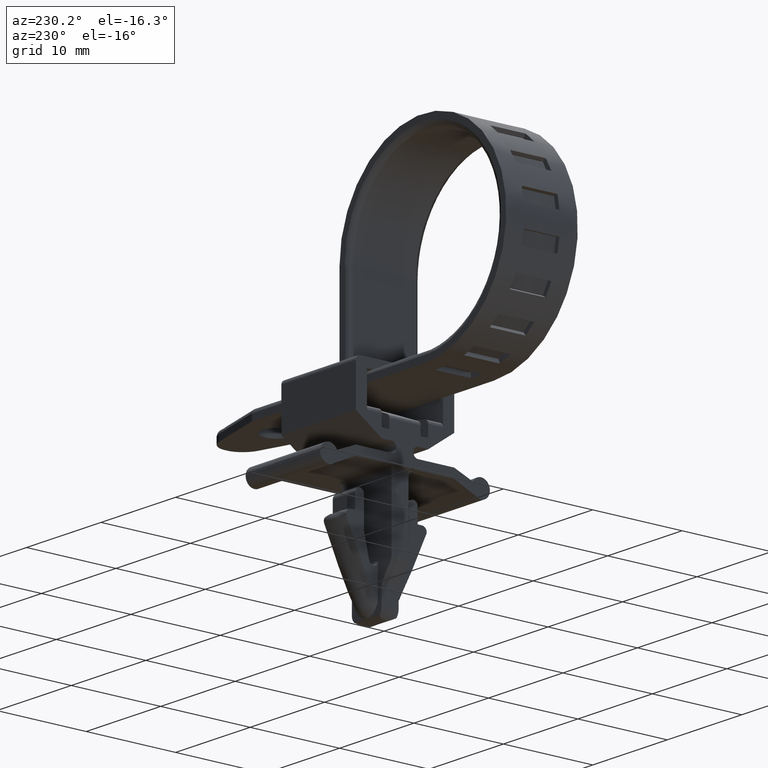
[diagram: clean part render]
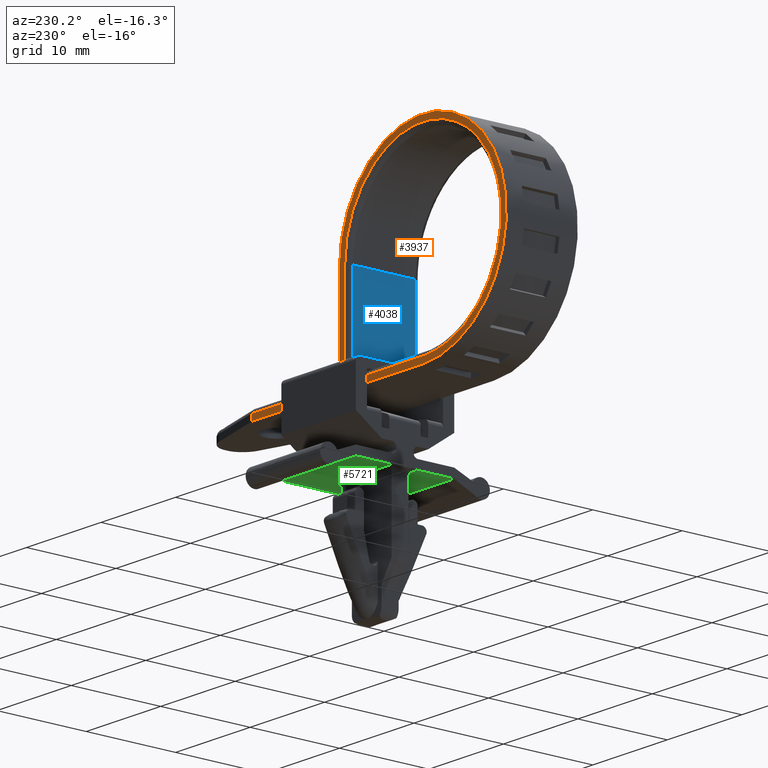
[diagram: same view with three faces highlighted in distinct colors, each labeled with its STEP entity id]
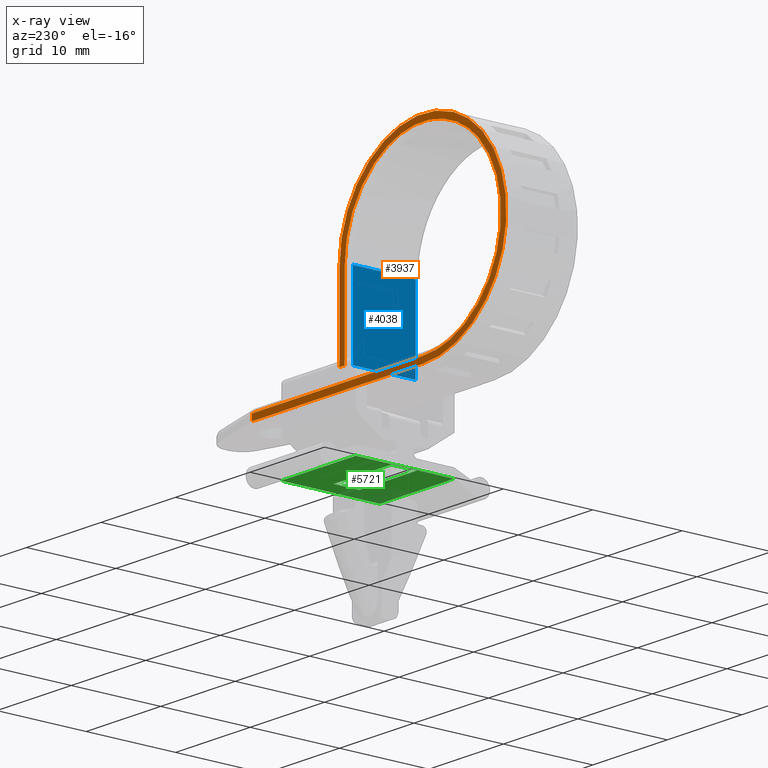
[diagram: x-ray of the same camera — body ghosted, the three highlighted faces saturated]
A machine part, auxiliary view with three faces highlighted in distinct colors.
The next image is the same camera in x-ray (body ghosted, the three faces saturated) — at least one of them is partly hidden behind the body in this view.
Their STEP definitions:

[orange] entity #3937 — the highlighted face is a freeform B-spline surface patch.
#819=CARTESIAN_POINT('',(0.0,4.0,-10.500000000000000));
#820=VERTEX_POINT('',#819);
#832=CARTESIAN_POINT('',(-7.424621842482065,4.0,7.424620562435379));
#833=VERTEX_POINT('',#832);
#834=CARTESIAN_POINT('',(-7.424621842482065,4.0,7.424620562435379));
#835=CARTESIAN_POINT('',(-7.948609622766560,3.999999999999991,6.900791653483070));
#836=CARTESIAN_POINT('',(-8.630462658645993,4.000000000000023,6.056568761035014));
#837=CARTESIAN_POINT('',(-9.374492388931696,3.999999999999961,4.773067327869858));
#838=CARTESIAN_POINT('',(-9.920004699465714,4.000000000000073,3.550134395748471));
#839=CARTESIAN_POINT('',(-10.335405938269449,3.999999999999866,2.088477906174860));
#840=CARTESIAN_POINT('',(-10.510457379508660,4.000000000000068,0.612967731298128));
#841=CARTESIAN_POINT('',(-10.500094750404330,3.999999999999976,-0.612824823575665));
#842=CARTESIAN_POINT('',(-10.380069926680290,4.000000000000028,-1.702777435509303));
#843=CARTESIAN_POINT('',(-10.137704106804600,3.999999999999986,-2.822170342073591));
#844=CARTESIAN_POINT('',(-9.679951790874272,3.999999999999999,-4.166295212594246));
#845=CARTESIAN_POINT('',(-8.969357573438369,3.999999999999997,-5.546246525241774));
#846=CARTESIAN_POINT('',(-8.134044559379023,4.000000000000028,-6.676076676280645));
#847=CARTESIAN_POINT('',(-7.299571944389052,3.999999999999946,-7.572974436488156));
#848=CARTESIAN_POINT('',(-6.317035016779497,4.000000000000187,-8.435149464702905));
#849=CARTESIAN_POINT('',(-5.135239827102516,3.999999999999947,-9.197544675921598));
#850=CARTESIAN_POINT('',(-3.789439392158237,3.999999999999941,-9.822707795055266));
#851=CARTESIAN_POINT('',(-2.666052479115838,4.000000000000227,-10.180491723037800));
#852=CARTESIAN_POINT('',(-1.352951799189506,3.999999999999500,-10.437488467248681));
#853=CARTESIAN_POINT('',(-0.531519396875636,4.000000000000572,-10.500028180965510));
#854=CARTESIAN_POINT('',(0.0,4.0,-10.500000000000000));
#855=B_SPLINE_CURVE_WITH_KNOTS('',3,(#834,#835,#836,#837,#838,#839,#840,#841,#842,#843,#844,#845,#846,#847,#848,#849,#850,#851,#852,#853,#854),.UNSPECIFIED.,.F.,.U.,(4,1,1,1,1,1,1,1,1,1,1,1,1,1,1,1,1,1,4),(0.000000046040089,2.222722733976134,3.237456044221027,4.445472087844408,6.233336864034687,7.779598587884102,8.890972869573121,9.905699200448527,11.065388480230119,12.321736820267420,14.157868814742351,15.704128639645271,16.525581304100388,17.830237589434820,19.618101407434089,20.729474231222369,22.275731283415020,23.145509020246120,24.740063072616788),.UNSPECIFIED.);
#856=EDGE_CURVE('',#833,#820,#855,.T.);
#858=CARTESIAN_POINT('',(10.500000000000000,4.0,0.0));
#859=VERTEX_POINT('',#858);
#860=CARTESIAN_POINT('',(10.500000000000000,4.0,0.0));
#861=CARTESIAN_POINT('',(10.500154694710440,4.000000000000006,0.773133845893031));
#862=CARTESIAN_POINT('',(10.353428160599080,3.999999999999973,2.093821559931107));
#863=CARTESIAN_POINT('',(9.853502854718235,4.000000000000017,3.714878004676395));
#864=CARTESIAN_POINT('',(9.207630500689072,4.000000000000036,5.122181737501232));
#865=CARTESIAN_POINT('',(8.357264122906642,3.999999999999897,6.440345790496608));
#866=CARTESIAN_POINT('',(7.165423332407453,4.000000000000104,7.737224780913016));
#867=CARTESIAN_POINT('',(6.022327786620296,3.999999999999996,8.636329848331309));
#868=CARTESIAN_POINT('',(4.805298380727545,3.999999999999898,9.365791353902905));
#869=CARTESIAN_POINT('',(3.609553559308496,4.000000000000213,9.896923118695280));
#870=CARTESIAN_POINT('',(2.026304269587476,3.999999999999877,10.348217045443880));
#871=CARTESIAN_POINT('',(0.580522700940758,4.000000000000078,10.520914571497100));
#872=CARTESIAN_POINT('',(-0.967118448245460,3.999999999999935,10.484070730696700));
#873=CARTESIAN_POINT('',(-2.292955898478573,4.000000000000033,10.283256373132540));
#874=CARTESIAN_POINT('',(-3.776399269984239,3.999999999999966,9.835731726582720));
#875=CARTESIAN_POINT('',(-5.021399730773955,4.000000000000046,9.256217051105312));
#876=CARTESIAN_POINT('',(-6.286845210074916,3.999999999999960,8.450766887513343));
#877=CARTESIAN_POINT('',(-7.014642556736312,3.999999999999941,7.834668392353567));
#878=CARTESIAN_POINT('',(-7.424621842482065,4.0,7.424620562435379));
#879=B_SPLINE_CURVE_WITH_KNOTS('',3,(#860,#861,#862,#863,#864,#865,#866,#867,#868,#869,#870,#871,#872,#873,#874,#875,#876,#877,#878),.UNSPECIFIED.,.F.,.U.,(4,1,1,1,1,1,1,1,1,1,1,1,1,1,1,1,4),(0.000000046217227,2.319363485040277,3.962268604493925,5.073642232825577,6.958147402292035,8.649360012940353,10.340590559306561,11.307003737978720,12.901544766767589,14.254509859921701,16.235662189412000,17.250394041144489,18.893292682918229,20.246272624625281,21.889175002650479,23.000533133391919,24.740064882880720),.UNSPECIFIED.);
#880=EDGE_CURVE('',#859,#833,#879,.T.);
#1089=CARTESIAN_POINT('',(22.936000000000000,4.000000000000116,-10.500000000000000));
#1090=VERTEX_POINT('',#1089);
#3248=CARTESIAN_POINT('',(22.936000000000000,4.0,-11.199999999999880));
#3249=VERTEX_POINT('',#3248);
#3250=CARTESIAN_POINT('',(22.936000000000000,4.0,-11.199999999999880));
#3251=CARTESIAN_POINT('',(22.936000000000000,4.000000000000116,-10.500000000000000));
#3252=QUASI_UNIFORM_CURVE('',1,(#3250,#3251),.UNSPECIFIED.,.F.,.U.);
#3253=EDGE_CURVE('',#3249,#1090,#3252,.T.);
#3326=CARTESIAN_POINT('',(0.0,4.0,-11.199999999999880));
#3327=VERTEX_POINT('',#3326);
#3393=CARTESIAN_POINT('',(11.199999999999999,4.0,0.0));
#3394=VERTEX_POINT('',#3393);
#3400=CARTESIAN_POINT('',(-7.919596812859408,4.0,7.919595085719162));
#3401=VERTEX_POINT('',#3400);
#3402=CARTESIAN_POINT('',(11.199999999999999,4.0,0.0));
#3403=CARTESIAN_POINT('',(11.200175895803810,4.000000000000018,0.859042047418585));
#3404=CARTESIAN_POINT('',(11.045047372255830,3.999999999999979,2.199037812897309));
#3405=CARTESIAN_POINT('',(10.555201670086600,4.000000000000014,3.813567968320649));
#3406=CARTESIAN_POINT('',(10.053768326058901,3.999999999999993,4.983339084010360));
#3407=CARTESIAN_POINT('',(9.397456642092852,3.999999999999981,6.154465742896124));
#3408=CARTESIAN_POINT('',(8.404178369890296,3.999999999999972,7.476786724370226));
#3409=CARTESIAN_POINT('',(7.173026637783350,4.000000000000089,8.659767678789853));
#3410=CARTESIAN_POINT('',(5.664245576367279,3.999999999999838,9.717184414319286));
#3411=CARTESIAN_POINT('',(4.174661917644510,4.000000000000335,10.441393959769130));
#3412=CARTESIAN_POINT('',(2.479956315308809,3.999999999999865,10.962551887236550));
#3413=CARTESIAN_POINT('',(1.065881566896983,4.000000000000005,11.181199684436610));
#3414=CARTESIAN_POINT('',(-0.309619605419999,4.000000000000159,11.214920611451680));
#3415=CARTESIAN_POINT('',(-1.682129677655672,4.000000000000275,11.109490855009261));
#3416=CARTESIAN_POINT('',(-3.063302379671519,3.999999999999887,10.808234093696880));
#3417=CARTESIAN_POINT('',(-4.356911033300959,4.000000000000026,10.338594868429929));
#3418=CARTESIAN_POINT('',(-5.395019782001944,3.999999999999969,9.837830314943551));
#3419=CARTESIAN_POINT('',(-6.624814498068787,4.000000000000075,9.078765345074061));
#3420=CARTESIAN_POINT('',(-7.445858388381723,3.999999999999946,8.393439719279101));
#3421=CARTESIAN_POINT('',(-7.919596812859408,4.0,7.919595085719162));
#3422=B_SPLINE_CURVE_WITH_KNOTS('',3,(#3402,#3403,#3404,#3405,#3406,#3407,#3408,#3409,#3410,#3411,#3412,#3413,#3414,#3415,#3416,#3417,#3418,#3419,#3420,#3421),.UNSPECIFIED.,.F.,.U.,(4,1,1,1,1,1,1,1,1,1,1,1,1,1,1,1,1,4),(0.000000045072692,2.577074683297386,4.020249368697559,5.051091476276280,6.391183420131387,8.040527442694451,9.999125014575824,11.493832706355979,13.555487781613021,14.947102279936651,16.802616319831600,17.833459759258051,19.070466155910690,20.925977165005119,22.059901897801911,23.193825004744841,24.379292313868380,26.389402797540889),.UNSPECIFIED.);
#3423=EDGE_CURVE('',#3394,#3401,#3422,.T.);
#3425=CARTESIAN_POINT('',(-7.919596812859408,4.0,7.919595085719162));
#3426=CARTESIAN_POINT('',(-8.429894631930621,3.999999999999996,7.409410623109487));
#3427=CARTESIAN_POINT('',(-9.197728625033381,3.999999999999997,6.476508900116661));
#3428=CARTESIAN_POINT('',(-10.081955993510880,3.999999999999986,4.959307248819838));
#3429=CARTESIAN_POINT('',(-10.729833367307011,4.000000000000009,3.381654268134087));
#3430=CARTESIAN_POINT('',(-11.097465838735250,3.999999999999998,1.784686529170129));
#3431=CARTESIAN_POINT('',(-11.213375064642820,4.000000000000001,0.361220104950053));
#3432=CARTESIAN_POINT('',(-11.187680099241989,4.0,-0.928436381245425));
#3433=CARTESIAN_POINT('',(-11.022661715926070,4.0,-2.122790906710114));
#3434=CARTESIAN_POINT('',(-10.679169693383320,4.000000000000002,-3.454975342855270));
#3435=CARTESIAN_POINT('',(-10.168870567471300,3.999999999999984,-4.790162210557360));
#3436=CARTESIAN_POINT('',(-9.433868943555094,4.000000000000054,-6.096920629911129));
#3437=CARTESIAN_POINT('',(-8.556409883381763,3.999999999999889,-7.266829820827486));
#3438=CARTESIAN_POINT('',(-7.618578619244306,4.000000000000003,-8.251876339867179));
#3439=CARTESIAN_POINT('',(-6.347957398479095,3.999999999999904,-9.281713687555605));
#3440=CARTESIAN_POINT('',(-4.797325269988676,4.000000000000062,-10.183900822165270));
#3441=CARTESIAN_POINT('',(-3.049277986815377,3.999999999999970,-10.826003413393330));
#3442=CARTESIAN_POINT('',(-1.443164134324604,4.000000000000005,-11.140325967022440));
#3443=CARTESIAN_POINT('',(-0.446691802137074,4.000000000000001,-11.200006778364250));
#3444=CARTESIAN_POINT('',(0.0,4.0,-11.199999999999880));
#3445=B_SPLINE_CURVE_WITH_KNOTS('',3,(#3425,#3426,#3427,#3428,#3429,#3430,#3431,#3432,#3433,#3434,#3435,#3436,#3437,#3438,#3439,#3440,#3441,#3442,#3443,#3444),.UNSPECIFIED.,.F.,.U.,(4,1,1,1,1,1,1,1,1,1,1,1,1,1,1,1,1,4),(0.000000045085113,2.164752241795231,3.607919259278930,5.257257875009771,7.267397209765942,8.504405557479288,9.535245923550686,11.133036844014560,12.112340670931140,13.658559184156990,15.410978529605041,16.596452852008252,18.039622817631528,19.482798434321111,21.492937605600879,23.399983644464729,25.049322295635921,26.389400354989000),.UNSPECIFIED.);
#3446=EDGE_CURVE('',#3401,#3327,#3445,.T.);
#3581=CARTESIAN_POINT('',(0.0,4.0,-11.199999999999880));
#3582=CARTESIAN_POINT('',(22.936000000000000,4.0,-11.199999999999880));
#3583=QUASI_UNIFORM_CURVE('',1,(#3581,#3582),.UNSPECIFIED.,.F.,.U.);
#3584=EDGE_CURVE('',#3327,#3249,#3583,.T.);
#3679=CARTESIAN_POINT('',(11.199999999999999,4.0,-9.000010999999770));
#3680=VERTEX_POINT('',#3679);
#3686=CARTESIAN_POINT('',(11.199999999999999,4.0,-9.000010999999770));
#3687=CARTESIAN_POINT('',(11.199999999999999,4.0,0.0));
#3688=QUASI_UNIFORM_CURVE('',1,(#3686,#3687),.UNSPECIFIED.,.F.,.U.);
#3689=EDGE_CURVE('',#3680,#3394,#3688,.T.);
#3781=CARTESIAN_POINT('',(0.0,4.0,-10.500000000000000));
#3782=CARTESIAN_POINT('',(22.936000000000000,4.000000000000116,-10.500000000000000));
#3783=QUASI_UNIFORM_CURVE('',1,(#3781,#3782),.UNSPECIFIED.,.F.,.U.);
#3784=EDGE_CURVE('',#820,#1090,#3783,.T.);
#3890=CARTESIAN_POINT('',(10.500000000000000,4.0,-9.000010999999770));
#3891=VERTEX_POINT('',#3890);
#3908=CARTESIAN_POINT('',(10.500000000000000,4.0,-9.000010999999770));
#3909=CARTESIAN_POINT('',(10.500000000000000,4.0,0.0));
#3910=QUASI_UNIFORM_CURVE('',1,(#3908,#3909),.UNSPECIFIED.,.F.,.U.);
#3911=EDGE_CURVE('',#3891,#859,#3910,.T.);
#3916=CARTESIAN_POINT('',(-12.905095202256771,4.0,12.318887757056689));
#3917=CARTESIAN_POINT('',(24.641094147623349,4.0,12.318887757056689));
#3918=CARTESIAN_POINT('',(-12.905095202256771,4.0,-12.318880928280761));
#3919=CARTESIAN_POINT('',(24.641094147623349,4.0,-12.318880928280761));
#3920=B_SPLINE_SURFACE_WITH_KNOTS('',1,1,((#3916,#3918),(#3917,#3919)),.UNSPECIFIED.,.F.,.F.,.U.,(2,2),(2,2),(0.0,37.546189349880109),(0.0,24.637768685337448),.UNSPECIFIED.);
#3921=ORIENTED_EDGE('',*,*,#3689,.F.);
#3922=CARTESIAN_POINT('',(11.199999999999999,4.0,-9.000010999999770));
#3923=CARTESIAN_POINT('',(10.500000000000000,4.0,-9.000010999999770));
#3924=QUASI_UNIFORM_CURVE('',1,(#3922,#3923),.UNSPECIFIED.,.F.,.U.);
#3925=EDGE_CURVE('',#3680,#3891,#3924,.T.);
#3926=ORIENTED_EDGE('',*,*,#3925,.T.);
#3927=ORIENTED_EDGE('',*,*,#3911,.T.);
#3928=ORIENTED_EDGE('',*,*,#880,.T.);
#3929=ORIENTED_EDGE('',*,*,#856,.T.);
#3930=ORIENTED_EDGE('',*,*,#3784,.T.);
#3931=ORIENTED_EDGE('',*,*,#3253,.F.);
#3932=ORIENTED_EDGE('',*,*,#3584,.F.);
#3933=ORIENTED_EDGE('',*,*,#3446,.F.);
#3934=ORIENTED_EDGE('',*,*,#3423,.F.);
#3935=EDGE_LOOP('',(#3921,#3926,#3927,#3928,#3929,#3930,#3931,#3932,#3933,#3934));
#3936=FACE_OUTER_BOUND('',#3935,.T.);
#3937=ADVANCED_FACE('',(#3936),#3920,.T.);

[blue] entity #4038 — the highlighted face is a freeform B-spline surface patch.
#698=CARTESIAN_POINT('',(10.0,-3.499999999999950,0.0));
#699=VERTEX_POINT('',#698);
#882=CARTESIAN_POINT('',(10.0,3.499999999999950,0.0));
#883=VERTEX_POINT('',#882);
#3287=CARTESIAN_POINT('',(10.0,-3.499999999999950,0.0));
#3288=CARTESIAN_POINT('',(10.0,3.499999999999950,0.0));
#3289=QUASI_UNIFORM_CURVE('',1,(#3287,#3288),.UNSPECIFIED.,.F.,.U.);
#3290=EDGE_CURVE('',#699,#883,#3289,.T.);
#3847=CARTESIAN_POINT('',(10.0,-3.500000000000000,-9.000010999999759));
#3848=VERTEX_POINT('',#3847);
#3866=CARTESIAN_POINT('',(10.0,-3.500000000000000,-9.000010999999759));
#3867=CARTESIAN_POINT('',(10.0,-3.499999999999950,0.0));
#3868=QUASI_UNIFORM_CURVE('',1,(#3866,#3867),.UNSPECIFIED.,.F.,.U.);
#3869=EDGE_CURVE('',#3848,#699,#3868,.T.);
#3888=CARTESIAN_POINT('',(10.000000000060499,3.500005499999073,-9.000005499998965));
#3889=VERTEX_POINT('',#3888);
#3902=CARTESIAN_POINT('',(10.0,3.499999999999950,0.0));
#3903=CARTESIAN_POINT('',(10.000000000060499,3.500005499999073,-9.000005499998965));
#3904=QUASI_UNIFORM_CURVE('',1,(#3902,#3903),.UNSPECIFIED.,.F.,.U.);
#3905=EDGE_CURVE('',#883,#3889,#3904,.T.);
#4016=CARTESIAN_POINT('',(10.0,-3.849650261157585,-9.449562038919963));
#4017=CARTESIAN_POINT('',(10.0,-3.849650261157585,0.449550797521097));
#4018=CARTESIAN_POINT('',(10.0,3.849655948911436,-9.449562038919963));
#4019=CARTESIAN_POINT('',(10.0,3.849655948911436,0.449550797521097));
#4020=B_SPLINE_SURFACE_WITH_KNOTS('',1,1,((#4016,#4018),(#4017,#4019)),.UNSPECIFIED.,.F.,.F.,.U.,(2,2),(2,2),(0.0,9.899112836441059),(0.0,7.699306210069021),.UNSPECIFIED.);
#4021=CARTESIAN_POINT('',(10.0,1.250000000000000,-9.000009624999780));
#4022=VERTEX_POINT('',#4021);
#4023=CARTESIAN_POINT('',(10.0,-3.500000000000000,-9.000010999999759));
#4024=CARTESIAN_POINT('',(10.0,1.250000000000000,-9.000009624999780));
#4025=QUASI_UNIFORM_CURVE('',1,(#4023,#4024),.UNSPECIFIED.,.F.,.U.);
#4026=EDGE_CURVE('',#3848,#4022,#4025,.T.);
#4027=ORIENTED_EDGE('',*,*,#4026,.F.);
#4028=ORIENTED_EDGE('',*,*,#3869,.T.);
#4029=ORIENTED_EDGE('',*,*,#3290,.T.);
#4030=ORIENTED_EDGE('',*,*,#3905,.T.);
#4031=CARTESIAN_POINT('',(10.0,1.250000000000000,-9.000009624999780));
#4032=CARTESIAN_POINT('',(10.000000000060499,3.500005499999073,-9.000005499998965));
#4033=QUASI_UNIFORM_CURVE('',1,(#4031,#4032),.UNSPECIFIED.,.F.,.U.);
#4034=EDGE_CURVE('',#4022,#3889,#4033,.T.);
#4035=ORIENTED_EDGE('',*,*,#4034,.F.);
#4036=EDGE_LOOP('',(#4027,#4028,#4029,#4030,#4035));
#4037=FACE_OUTER_BOUND('',#4036,.T.);
#4038=ADVANCED_FACE('',(#4037),#4020,.T.);

[green] entity #5721 — the highlighted face is a freeform B-spline surface patch.
#4125=CARTESIAN_POINT('',(15.050000000000001,-1.450000000000016,-18.100010999999899));
#4126=VERTEX_POINT('',#4125);
#4145=CARTESIAN_POINT('',(15.050000000000001,1.449999999999984,-18.100010999999899));
#4146=VERTEX_POINT('',#4145);
#4160=CARTESIAN_POINT('',(15.050000000000001,-1.450000000000016,-18.100010999999899));
#4161=CARTESIAN_POINT('',(15.050000000000001,1.449999999999984,-18.100010999999899));
#4162=QUASI_UNIFORM_CURVE('',1,(#4160,#4161),.UNSPECIFIED.,.F.,.U.);
#4163=EDGE_CURVE('',#4126,#4146,#4162,.T.);
#4182=CARTESIAN_POINT('',(7.350000000000000,1.449999999999984,-18.100010999999899));
#4183=VERTEX_POINT('',#4182);
#4197=CARTESIAN_POINT('',(15.050000000000001,1.449999999999984,-18.100010999999899));
#4198=CARTESIAN_POINT('',(7.350000000000000,1.449999999999984,-18.100010999999899));
#4199=QUASI_UNIFORM_CURVE('',1,(#4197,#4198),.UNSPECIFIED.,.F.,.U.);
#4200=EDGE_CURVE('',#4146,#4183,#4199,.T.);
#4221=CARTESIAN_POINT('',(7.350000000000000,-1.450000000000016,-18.100010999999899));
#4222=VERTEX_POINT('',#4221);
#4238=CARTESIAN_POINT('',(7.350000000000000,-1.450000000000016,-18.100010999999899));
#4239=CARTESIAN_POINT('',(15.050000000000001,-1.450000000000016,-18.100010999999899));
#4240=QUASI_UNIFORM_CURVE('',1,(#4238,#4239),.UNSPECIFIED.,.F.,.U.);
#4241=EDGE_CURVE('',#4222,#4126,#4240,.T.);
#4267=CARTESIAN_POINT('',(7.350000000000000,1.449999999999984,-18.100010999999899));
#4268=CARTESIAN_POINT('',(7.350000000000000,-1.450000000000016,-18.100010999999899));
#4269=QUASI_UNIFORM_CURVE('',1,(#4267,#4268),.UNSPECIFIED.,.F.,.U.);
#4270=EDGE_CURVE('',#4183,#4222,#4269,.T.);
#4884=CARTESIAN_POINT('',(7.200000000000100,5.499952000000000,-18.100010999999899));
#4885=VERTEX_POINT('',#4884);
#4891=CARTESIAN_POINT('',(7.200000000000100,-5.500048000000000,-18.100010999999899));
#4892=VERTEX_POINT('',#4891);
#4893=CARTESIAN_POINT('',(7.200000000000100,-5.500048000000000,-18.100010999999899));
#4894=CARTESIAN_POINT('',(7.200000000000100,5.499952000000000,-18.100010999999899));
#4895=QUASI_UNIFORM_CURVE('',1,(#4893,#4894),.UNSPECIFIED.,.F.,.U.);
#4896=EDGE_CURVE('',#4892,#4885,#4895,.T.);
#5085=CARTESIAN_POINT('',(17.199999999999999,-5.500048000000000,-18.100010999999899));
#5086=VERTEX_POINT('',#5085);
#5087=CARTESIAN_POINT('',(17.199999999999999,-5.500048000000000,-18.100010999999899));
#5088=CARTESIAN_POINT('',(7.200000000000100,-5.500048000000000,-18.100010999999899));
#5089=QUASI_UNIFORM_CURVE('',1,(#5087,#5088),.UNSPECIFIED.,.F.,.U.);
#5090=EDGE_CURVE('',#5086,#4892,#5089,.T.);
#5685=CARTESIAN_POINT('',(17.199999999999999,5.499952000000000,-18.100010999999899));
#5686=VERTEX_POINT('',#5685);
#5692=CARTESIAN_POINT('',(17.199999999999999,5.499952000000000,-18.100010999999899));
#5693=CARTESIAN_POINT('',(7.200000000000100,5.499952000000000,-18.100010999999899));
#5694=QUASI_UNIFORM_CURVE('',1,(#5692,#5693),.UNSPECIFIED.,.F.,.U.);
#5695=EDGE_CURVE('',#5686,#4885,#5694,.T.);
#5700=CARTESIAN_POINT('',(6.700499795909330,-6.049498145900398,-18.100010999999899));
#5701=CARTESIAN_POINT('',(17.699501008753479,-6.049498145900398,-18.100010999999899));
#5702=CARTESIAN_POINT('',(6.700499795909330,6.049401457466751,-18.100010999999899));
#5703=CARTESIAN_POINT('',(17.699501008753479,6.049401457466751,-18.100010999999899));
#5704=B_SPLINE_SURFACE_WITH_KNOTS('',1,1,((#5700,#5702),(#5701,#5703)),.UNSPECIFIED.,.F.,.F.,.U.,(2,2),(2,2),(0.0,10.999001212844149),(0.0,12.098899603367149),.UNSPECIFIED.);
#5705=ORIENTED_EDGE('',*,*,#4896,.T.);
#5706=ORIENTED_EDGE('',*,*,#5695,.F.);
#5707=CARTESIAN_POINT('',(17.199999999999999,-5.500048000000000,-18.100010999999899));
#5708=CARTESIAN_POINT('',(17.199999999999999,5.499952000000000,-18.100010999999899));
#5709=QUASI_UNIFORM_CURVE('',1,(#5707,#5708),.UNSPECIFIED.,.F.,.U.);
#5710=EDGE_CURVE('',#5086,#5686,#5709,.T.);
#5711=ORIENTED_EDGE('',*,*,#5710,.F.);
#5712=ORIENTED_EDGE('',*,*,#5090,.T.);
#5713=EDGE_LOOP('',(#5705,#5706,#5711,#5712));
#5714=FACE_OUTER_BOUND('',#5713,.T.);
#5715=ORIENTED_EDGE('',*,*,#4241,.T.);
#5716=ORIENTED_EDGE('',*,*,#4163,.T.);
#5717=ORIENTED_EDGE('',*,*,#4200,.T.);
#5718=ORIENTED_EDGE('',*,*,#4270,.T.);
#5719=EDGE_LOOP('',(#5715,#5716,#5717,#5718));
#5720=FACE_BOUND('',#5719,.T.);
#5721=ADVANCED_FACE('',(#5714,#5720),#5704,.F.);